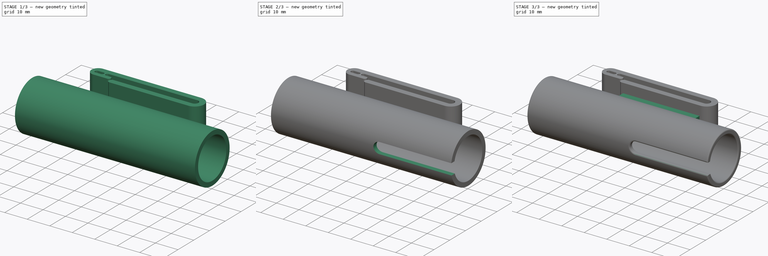
[diagram: build sequence overview — one tinted view per stage of 3, left to right]
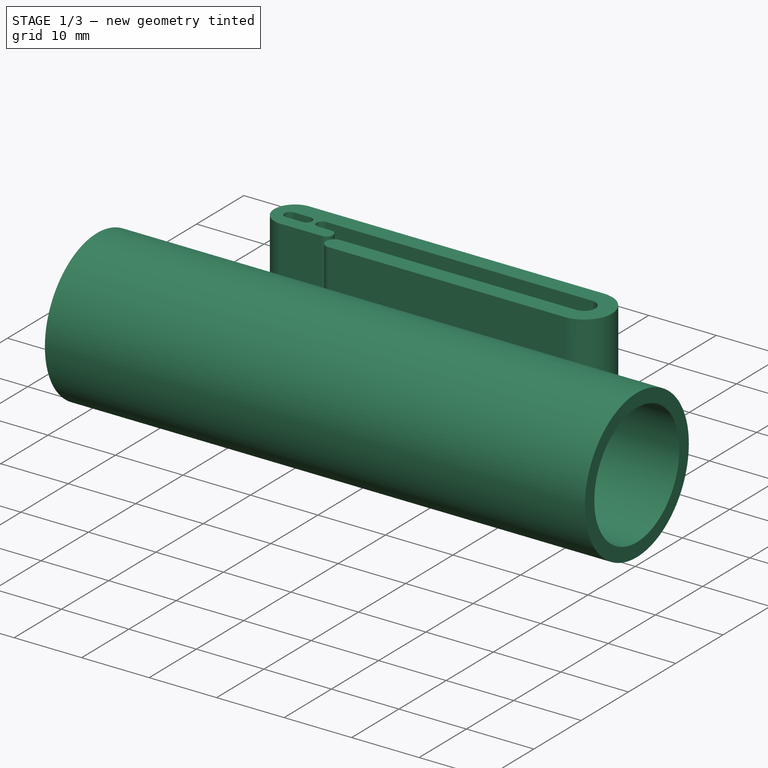
[diagram: stage 1 of 3 — iso view after this stage's code; geometry added in this stage tinted green]
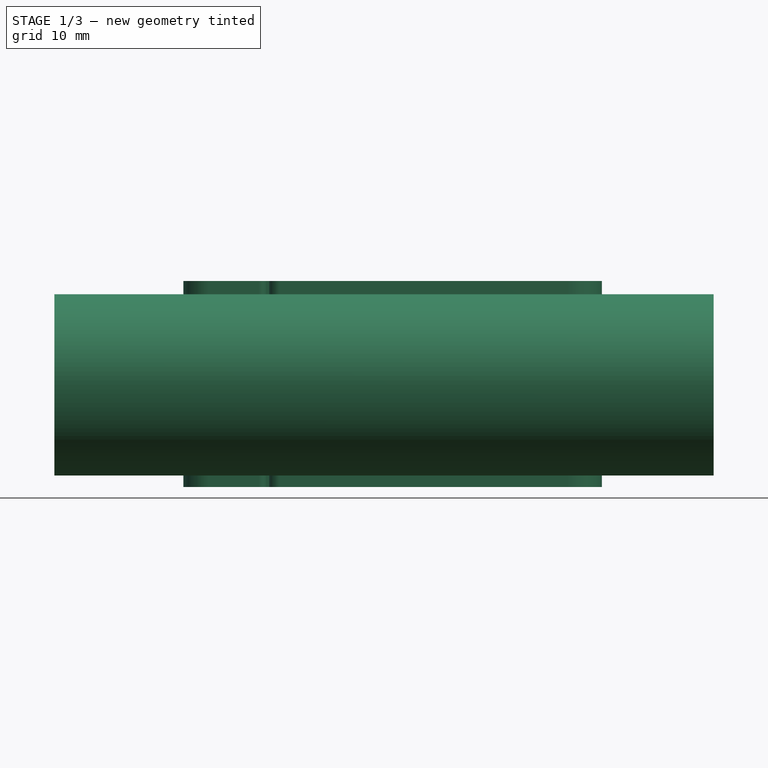
[diagram: stage 1 of 3 — front view after this stage's code; geometry added in this stage tinted green]
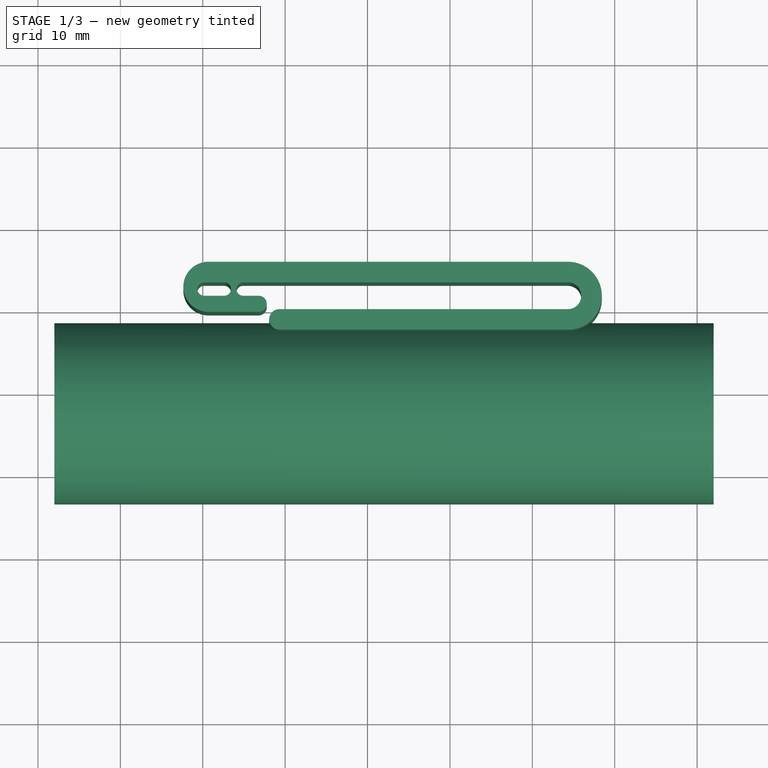
[diagram: stage 1 of 3 — top view after this stage's code; geometry added in this stage tinted green]
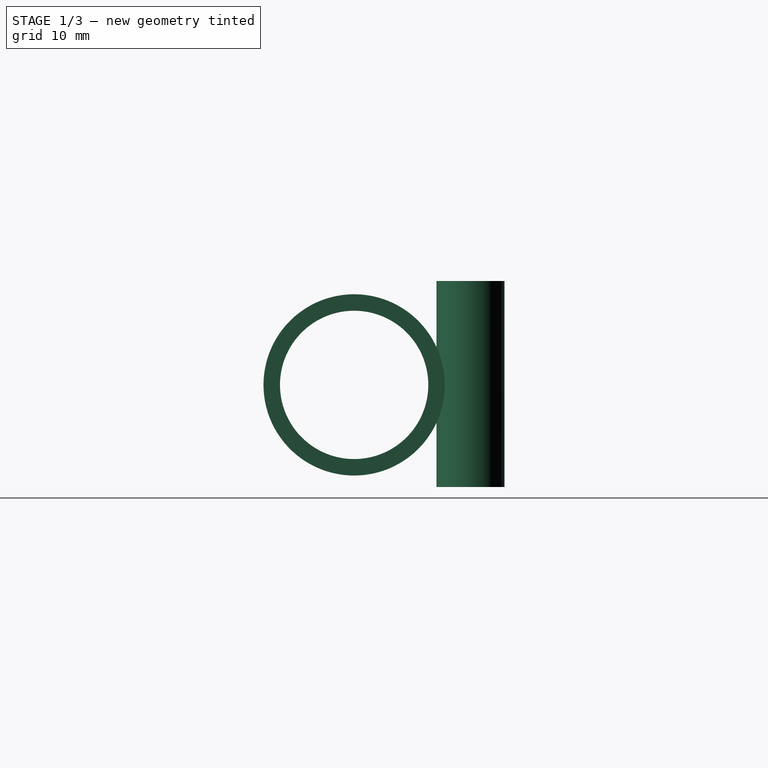
[diagram: stage 1 of 3 — right view after this stage's code; geometry added in this stage tinted green]
FCSTD DOCUMENT  (FreeCAD 0.20R29603 (Git))
Label: Flashlight_Belt_Holder
License: All rights reserved
LicenseURL: http://en.wikipedia.org/wiki/All_rights_reserved
objects: Sketcher::SketchObject×5, PartDesign::Pad×4, PartDesign::Pocket×1, PartDesign::Fillet×1, PartDesign::Body×1, App::Part×1
note: 18 computed .brp shape members not serialized (recipe doc carries the construction recipe); baked Part::Feature solids carry a one-line shape summary decoded from their .brp

FEATURE [Sketcher::SketchObject] Sketch
  FullyConstrained = false
  MapMode = 5
  Support = -> [XY_Plane001]
  sketch-geometry (17):
    g0: LineSegment StartX=-20.6869 StartY=-2.5 StartZ=0 EndX=14.3131 EndY=-2.5 EndZ=0
    g1: ArcOfCircle CenterX=14.3131 CenterY=1.625 CenterZ=0 NormalX=0 NormalY=0 NormalZ=1 AngleXU=0 Radius=4.125 StartAngle=4.71239 EndAngle=7.85398
    g2: LineSegment StartX=14.3131 StartY=5.75 StartZ=0 EndX=-29.3105 EndY=5.75 EndZ=0
    g3: LineSegment StartX=-23.0439 StartY=3.25 StartZ=0 EndX=14.3131 EndY=3.25 EndZ=0
    g4: ArcOfCircle CenterX=14.3131 CenterY=1.625 CenterZ=0 NormalX=0 NormalY=0 NormalZ=1 AngleXU=0 Radius=1.625 StartAngle=4.71239 EndAngle=7.85398
    g5: LineSegment StartX=14.3131 StartY=0 StartZ=0 EndX=-20.6869 EndY=0 EndZ=0
    g6: ArcOfCircle CenterX=-20.6869 CenterY=-1.25 CenterZ=0 NormalX=0 NormalY=0 NormalZ=1 AngleXU=0 Radius=1.25 StartAngle=1.5708 EndAngle=4.71239
    g7: ArcOfCircle CenterX=-29.3105 CenterY=2.70596 CenterZ=0 NormalX=0 NormalY=0 NormalZ=1 AngleXU=0 Radius=3.04404 StartAngle=1.5708 EndAngle=4.71239
    g8: LineSegment StartX=-29.3105 StartY=-0.338083 StartZ=0 EndX=-23.2089 EndY=-0.338083 EndZ=0
    g9: ArcOfCircle CenterX=-23.2089 CenterY=0.642392 CenterZ=0 NormalX=0 NormalY=0 NormalZ=1 AngleXU=0 Radius=0.980474 StartAngle=4.71239 EndAngle=7.85398
    g10: LineSegment StartX=-23.2089 StartY=1.62287 StartZ=0 EndX=-25.0966 EndY=1.62287 EndZ=0
    g11: ArcOfCircle CenterX=-25.0966 CenterY=2.43643 CenterZ=0 NormalX=0 NormalY=0 NormalZ=1 AngleXU=0 Radius=0.813567 StartAngle=1.5708 EndAngle=4.71239
    g12: LineSegment StartX=-25.0966 StartY=3.25 StartZ=0 EndX=-23.0439 EndY=3.25 EndZ=0
    g13: ArcOfCircle CenterX=-29.8299 CenterY=2.43643 CenterZ=0 NormalX=0 NormalY=0 NormalZ=1 AngleXU=0 Radius=0.813567 StartAngle=1.5708 EndAngle=4.71239
    g14: ArcOfCircle CenterX=-27.3837 CenterY=2.43643 CenterZ=0 NormalX=0 NormalY=0 NormalZ=1 AngleXU=0 Radius=0.813567 StartAngle=4.71239 EndAngle=7.85398
    g15: LineSegment StartX=-29.8299 StartY=1.62287 StartZ=0 EndX=-27.3837 EndY=1.62287 EndZ=0
    g16: LineSegment StartX=-27.3837 StartY=3.25 StartZ=0 EndX=-29.8299 EndY=3.25 EndZ=0
  constraints (37):
    c: Horizontal(g0)
    c: Tangent(g0,g1) = -1.5708
    c: Coincident(g1,g2)
    c: Horizontal(g2)
    c: Horizontal(g3)
    c: Tangent(g3,g4) = 1.5708
    c: PointOnObject(g4,g-1)
    c: Coincident(g4,g5)
    c: PointOnObject(g5,g-1)
    c: Tangent(g5,g6) = -1.5708
    c: Coincident(g6,g0)
    c: Vertical(g4,g3)
    c: DistanceY(g4,g3) = 3.25
    c: Vertical(g1,g3)
    c: Vertical(g1,g0)
    c: DistanceY(g0,g4) = 2.5
    c: DistanceY(g3,g1) = 2.5
    c: Vertical(g5,g0)
    c: DistanceX(g0,g0) = 35
    c: Tangent(g2,g7) = -1.5708
    c: Tangent(g7,g8) = -1.5708
    c: Horizontal(g8)
    c: Tangent(g8,g9) = -1.5708
    c: Tangent(g9,g10) = -1.5708
    c: Tangent(g10,g11) = 1.5708
    c: Tangent(g11,g12) = 1.5708
    c: Coincident(g12,g3)
    c: Horizontal(g12)
    c: Horizontal(g10)
    c: Tangent(g13,g15) = -1.5708
    c: Tangent(g15,g14) = -1.5708
    c: Tangent(g14,g16) = -1.5708
    c: Tangent(g16,g13) = -1.5708
    c: Equal(g13,g14)
    c: Horizontal(g15)
    c: Horizontal(g14,g11)
    c: Horizontal(g14,g10)
FEATURE [PartDesign::Pad] Pad  label="BeltClip"
  Direction = (0,0,1)
  Length = 25
  Length2 = 10
  Profile = -> Sketch
  ReferenceAxis = -> Sketch [N_Axis]
  Type = 0
FEATURE [Sketcher::SketchObject] Sketch001
  AttachmentOffset = pos=(0,0,-48) rot=(0,0,1;0rad)
  FullyConstrained = false
  MapMode = 5
  Placement = pos=(-48,1.07e-14,-1.07e-14) rot=(0.57735,0.57735,0.57735;2.0944rad)
  Support = -> [YZ_Plane001]
  sketch-geometry (2):
    g0: Circle CenterX=-12.5 CenterY=12.3915 CenterZ=0 NormalX=0 NormalY=0 NormalZ=1 AngleXU=0 Radius=9
    g1: Circle CenterX=-12.5 CenterY=12.3915 CenterZ=0 NormalX=0 NormalY=0 NormalZ=1 AngleXU=0 Radius=11
  constraints (4):
    c: Diameter(g0) = 18
    c: Coincident(g1,g0)
    c: Diameter(g1) = 22
    c: DistanceX(g0,g-1) = 12.5
FEATURE [PartDesign::Pad] Pad001  label="Tube"
  BaseFeature = -> Pad
  Direction = (1,-2e-16,3e-16)
  Length = 80
  Length2 = 10
  Profile = -> Sketch001
  ReferenceAxis = -> Sketch001 [N_Axis]
  Type = 0
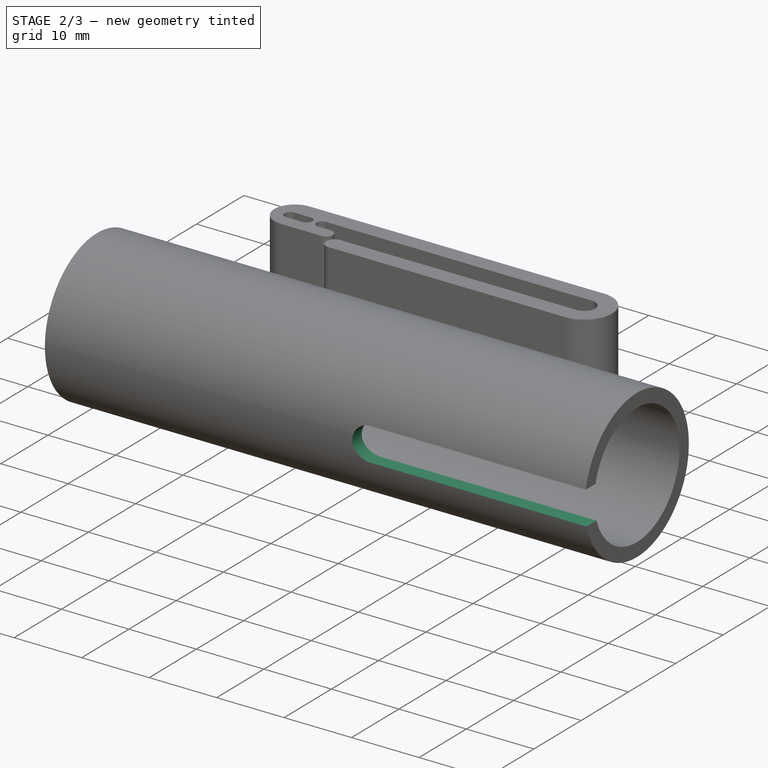
[diagram: stage 2 of 3 — iso view after this stage's code; geometry added in this stage tinted green]
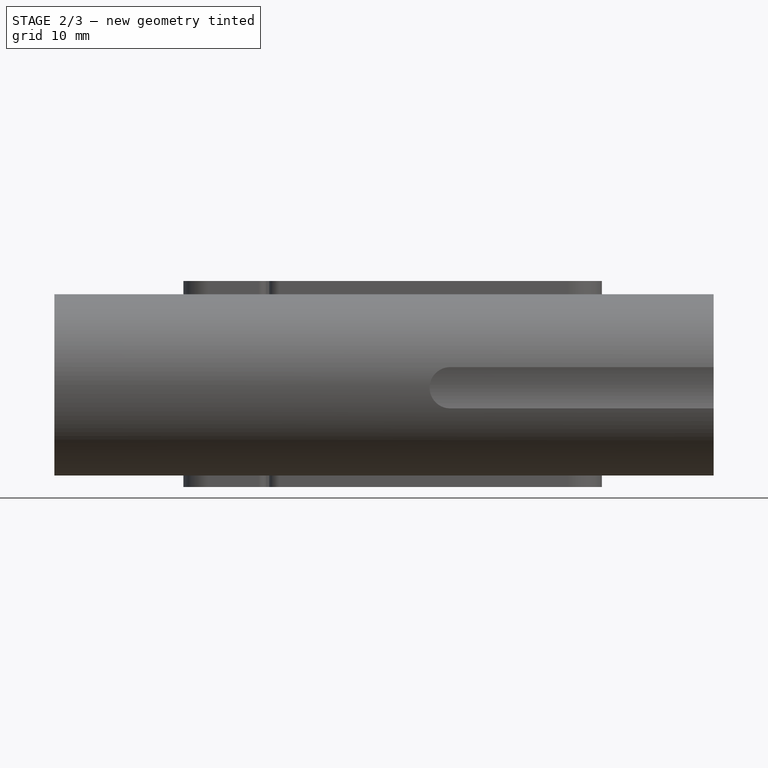
[diagram: stage 2 of 3 — front view after this stage's code; geometry added in this stage tinted green]
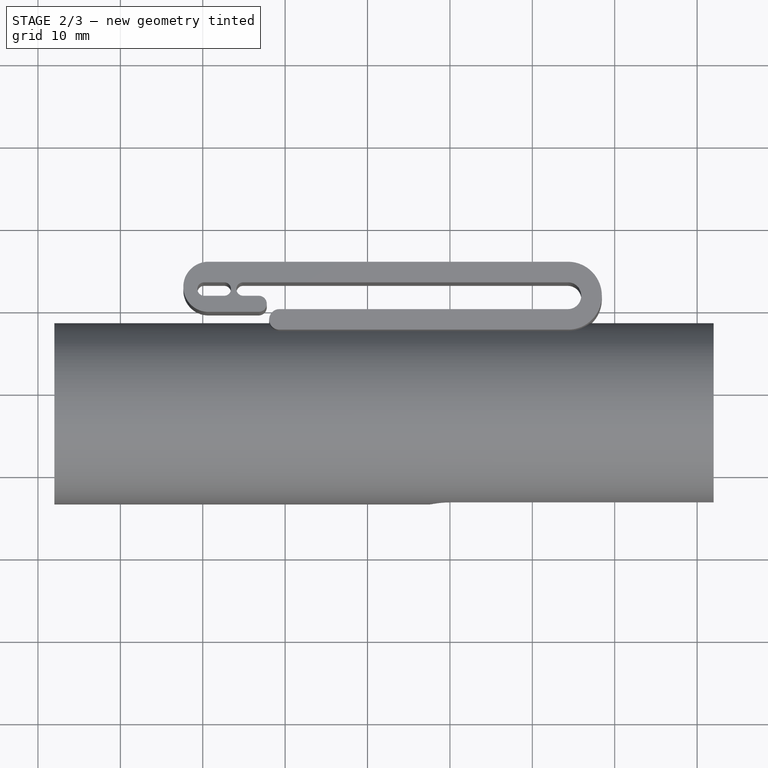
[diagram: stage 2 of 3 — top view after this stage's code; geometry added in this stage tinted green]
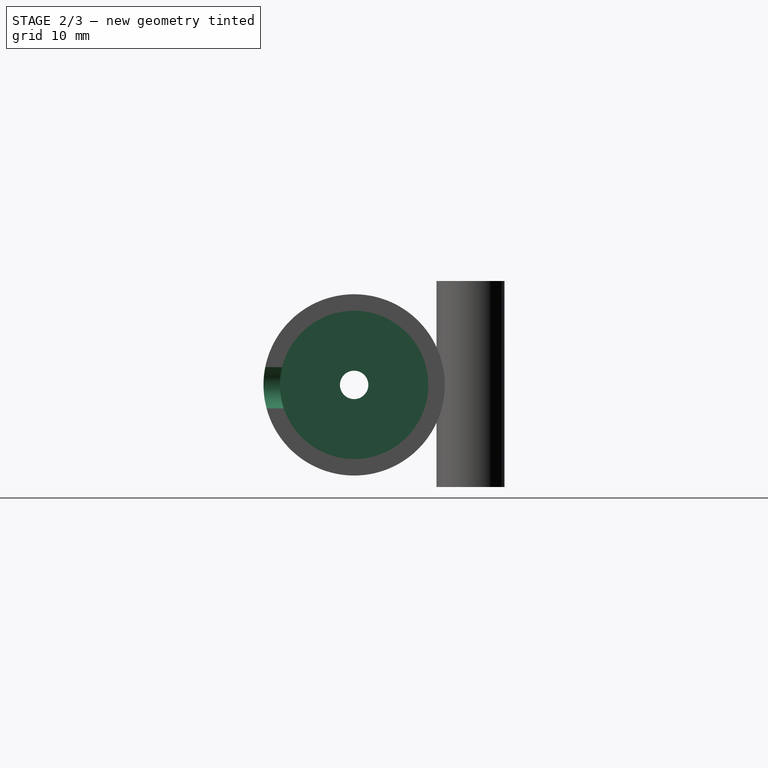
[diagram: stage 2 of 3 — right view after this stage's code; geometry added in this stage tinted green]
FEATURE [Sketcher::SketchObject] Sketch002
  AttachmentOffset = pos=(0,0,-20) rot=(0,0,1;0rad)
  FullyConstrained = false
  MapMode = 5
  Placement = pos=(-20,4.4e-15,-4.4e-15) rot=(0.57735,0.57735,0.57735;2.0944rad)
  Support = -> [YZ_Plane001]
  sketch-geometry (10):
    g0: LineSegment StartX=-6.18094 StartY=20.8176 StartZ=0 EndX=-1.15394 EndY=20.8176 EndZ=0
    g1: LineSegment StartX=-1.15394 StartY=20.8176 StartZ=0 EndX=-1.15394 EndY=15.6318 EndZ=0
    g2: LineSegment StartX=-1.15394 StartY=15.6318 StartZ=0 EndX=-3.60294 EndY=15.6318 EndZ=0
    g3: LineSegment StartX=-6.18094 StartY=19.9606 StartZ=0 EndX=-6.18094 EndY=20.8176 EndZ=0
    g4: LineSegment StartX=-6.18094 StartY=19.9606 StartZ=0 EndX=-3.60294 EndY=15.6318 EndZ=0
    g5: LineSegment StartX=-3.60294 StartY=9.15481 StartZ=0 EndX=-1.15394 EndY=9.15481 EndZ=0
    g6: LineSegment StartX=-1.15394 StartY=9.15481 StartZ=0 EndX=-1.15394 EndY=3.969 EndZ=0
    g7: LineSegment StartX=-1.15394 StartY=3.969 StartZ=0 EndX=-6.18094 EndY=3.969 EndZ=0
    g8: LineSegment StartX=-6.18094 StartY=3.969 StartZ=0 EndX=-6.18094 EndY=4.82598 EndZ=0
    g9: LineSegment StartX=-6.18094 StartY=4.82598 StartZ=0 EndX=-3.60294 EndY=9.15481 EndZ=0
  constraints (28):
    c: Coincident(g0,g1)
    c: Coincident(g1,g2)
    c: Coincident(g3,g0)
    c: Horizontal(g0)
    c: Horizontal(g2)
    c: Vertical(g1)
    c: Vertical(g3)
    c: Coincident(g3,g4)
    c: Coincident(g2,g4)
    c: Coincident(g5,g6)
    c: Vertical(g6)
    c: Coincident(g6,g7)
    c: Horizontal(g7)
    c: Coincident(g7,g8)
    c: Coincident(g9,g8)
    c: Coincident(g9,g5)
    c: Equal(g6,g1)
    c: Horizontal(g5)
    c: Equal(g3,g8)
    c: Vertical(g8)
    c: Equal(g9,g4)
    c: Equal(g5,g2)
    c: Vertical(g1,g5)
    c: DistanceX(g0,g0) = 5.027
    c: Vertical(g3,g8)
    c: DistanceY(g5,g2) = 6.477
    c: DistanceY(g-1,g6) = 3.969
    c: DistanceX(g2,g2) = 2.449
FEATURE [Sketcher::SketchObject] Sketch003
  AttachmentOffset = pos=(0,0,-48) rot=(0,0,1;0rad)
  FullyConstrained = false
  MapMode = 5
  Placement = pos=(-48,1.07e-14,-1.07e-14) rot=(0.57735,0.57735,0.57735;2.0944rad)
  Support = -> [YZ_Plane001]
  sketch-geometry (2):
    g0: Circle CenterX=-12.5 CenterY=12.3915 CenterZ=0 NormalX=0 NormalY=0 NormalZ=1 AngleXU=0 Radius=11
    g1: Circle CenterX=-12.5 CenterY=12.3915 CenterZ=0 NormalX=0 NormalY=0 NormalZ=1 AngleXU=0 Radius=1.72406
  constraints (1):
    c: Coincident(g1,g0)
FEATURE [PartDesign::Pad] Pad003  label="Bottom"
  BaseFeature = -> Pad001
  Direction = (1,-2e-16,3e-16)
  Length = 2
  Length2 = 10
  Profile = -> Sketch003
  ReferenceAxis = -> Sketch003 [N_Axis]
  Type = 0
FEATURE [Sketcher::SketchObject] Sketch004
  AttachmentOffset = pos=(0,0,20) rot=(0,0,1;0rad)
  FullyConstrained = false
  MapMode = 5
  Placement = pos=(0,-20,-4.4e-15) rot=(1,0,0;1.5708rad)
  Support = -> [XZ_Plane001]
  sketch-geometry (5):
    g0: LineSegment StartX=39.089 StartY=12.0453 StartZ=0 EndX=-39.4489 EndY=12.0453 EndZ=0
    g1: ArcOfCircle CenterX=39.089 CenterY=12.0453 CenterZ=0 NormalX=0 NormalY=0 NormalZ=1 AngleXU=0 Radius=2.5 StartAngle=4.71239 EndAngle=7.85398
    g2: ArcOfCircle CenterX=0.0331527 CenterY=12.0453 CenterZ=0 NormalX=0 NormalY=0 NormalZ=1 AngleXU=0 Radius=2.5 StartAngle=1.5708 EndAngle=4.71239
    g3: LineSegment StartX=39.089 StartY=14.5453 StartZ=0 EndX=0.0331527 EndY=14.5453 EndZ=0
    g4: LineSegment StartX=0.0331527 StartY=9.54527 StartZ=0 EndX=39.089 EndY=9.54527 EndZ=0
  constraints (9):
    c: Horizontal(g0)
    c: Tangent(g1,g3) = -1.5708
    c: Tangent(g3,g2) = -1.5708
    c: Tangent(g2,g4) = -1.5708
    c: Tangent(g4,g1) = -1.5708
    c: Equal(g1,g2)
    c: Coincident(g1,g0)
    c: PointOnObject(g2,g0)
    c: DistanceY(g1,g1) = 5
FEATURE [PartDesign::Pocket] Pocket
  BaseFeature = -> Pad003
  Direction = (0,1,2e-16)
  Length = 5
  Length2 = 5
  Profile = -> Sketch004
  ReferenceAxis = -> Sketch004 [N_Axis]
  Reversed = true
  Type = 0
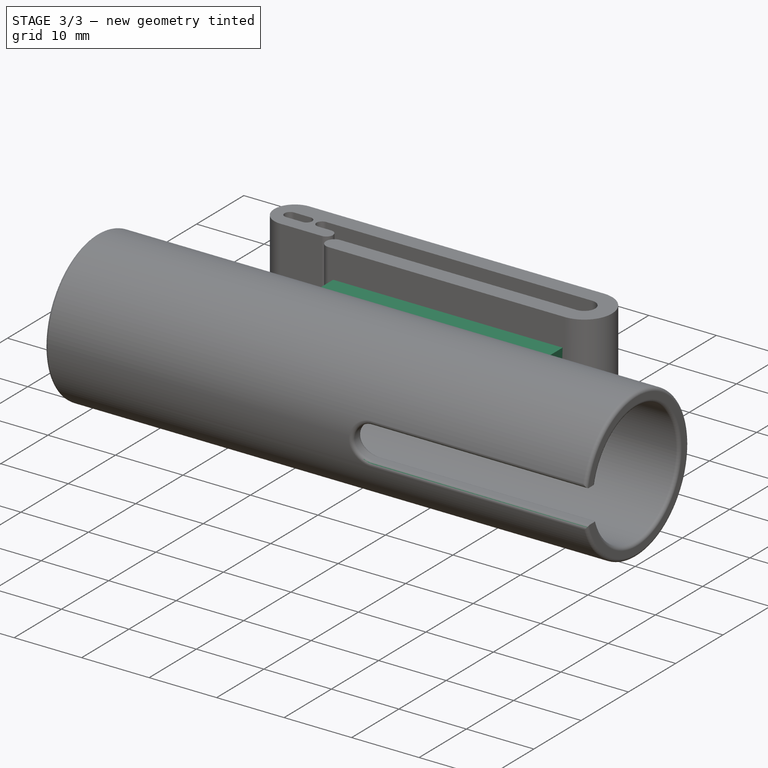
[diagram: stage 3 of 3 — iso view after this stage's code; geometry added in this stage tinted green]
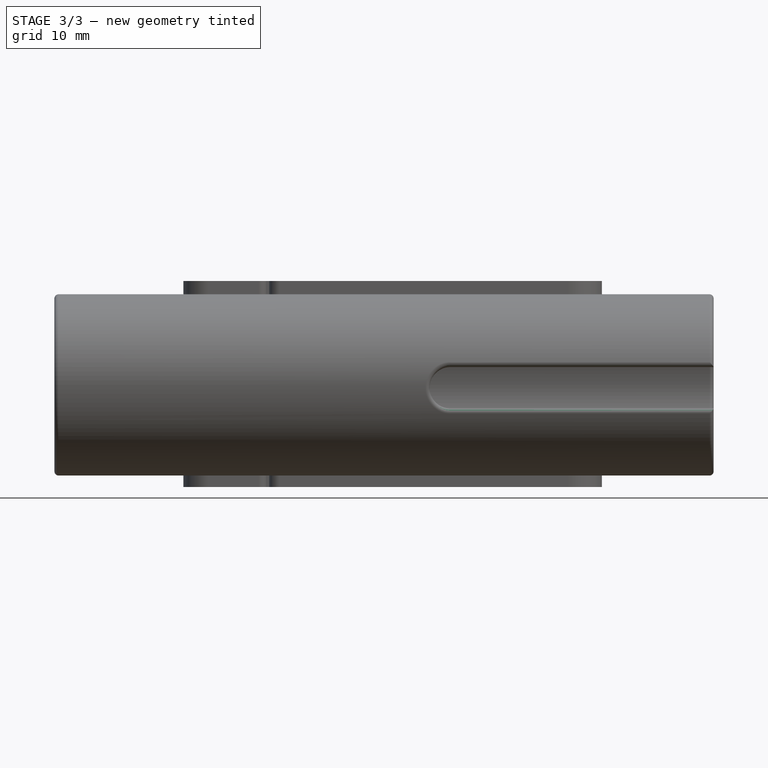
[diagram: stage 3 of 3 — front view after this stage's code; geometry added in this stage tinted green]
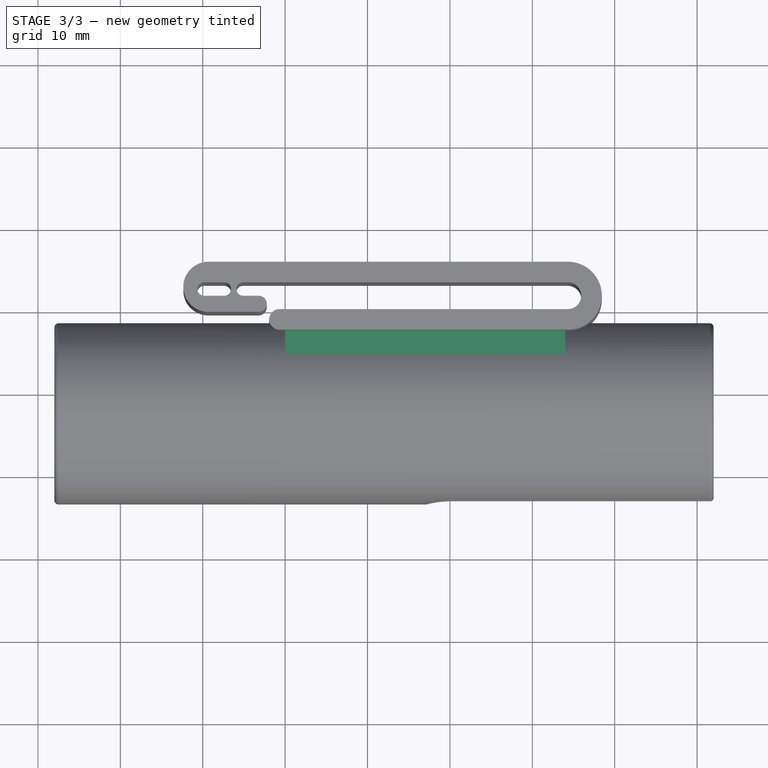
[diagram: stage 3 of 3 — top view after this stage's code; geometry added in this stage tinted green]
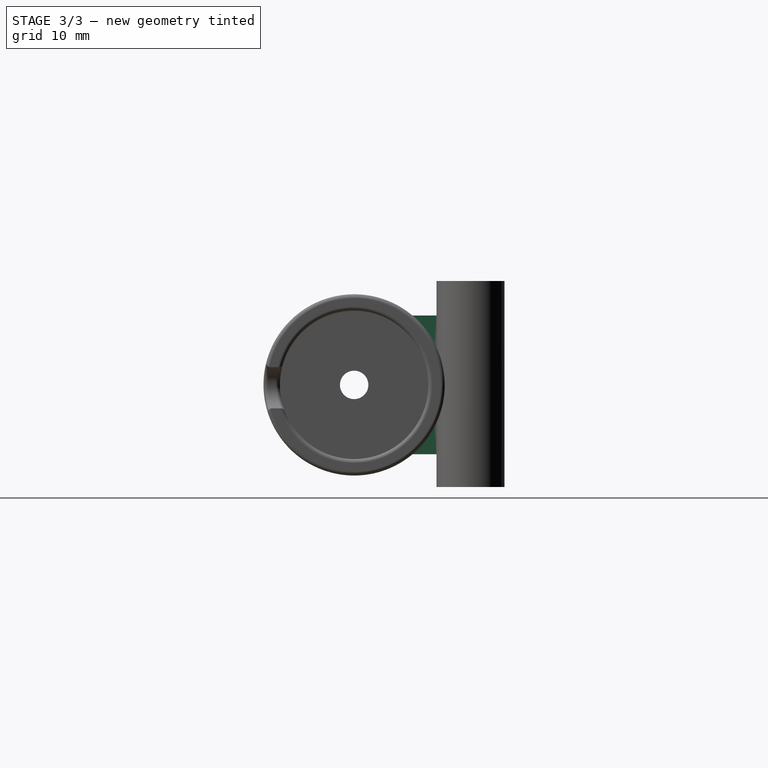
[diagram: stage 3 of 3 — right view after this stage's code; geometry added in this stage tinted green]
FEATURE [PartDesign::Pad] Pad004
  BaseFeature = -> Pocket
  Direction = (1,-2e-16,3e-16)
  Length = 34
  Length2 = 10
  Profile = -> Sketch002
  ReferenceAxis = -> Sketch002 [N_Axis]
  Type = 0
FEATURE [PartDesign::Fillet] Fillet
  Base = -> Pad004 [Edge60,Edge88,Edge59,Edge58,Edge57,Edge94,Edge92,Edge90,Edge85]
  BaseFeature = -> Pad004
  Radius = 0.5
  SupportTransform = false
  UseAllEdges = false
FEATURE [PartDesign::Body] Body
  Group = -> [Sketch,Pad,Sketch001,Pad001,Sketch002,Sketch003,Pad003,Sketch004,Pocket,Pad004,Fillet]
  Origin = -> Origin001
  Tip = -> Fillet
FEATURE [App::Part] Part
  Group = -> [Body]
  Origin = -> Origin
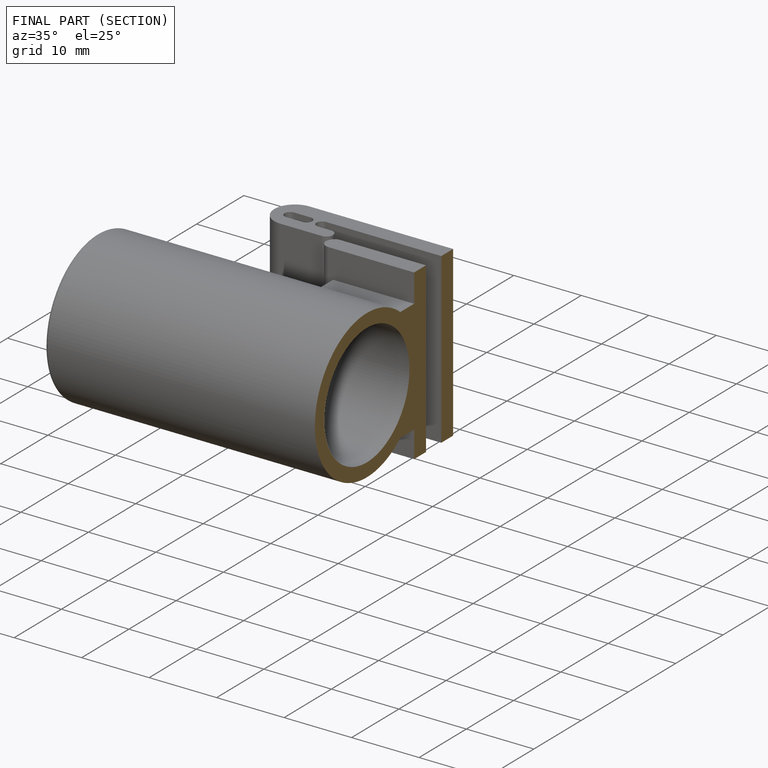
[diagram: finished part — half-section view (interior)]
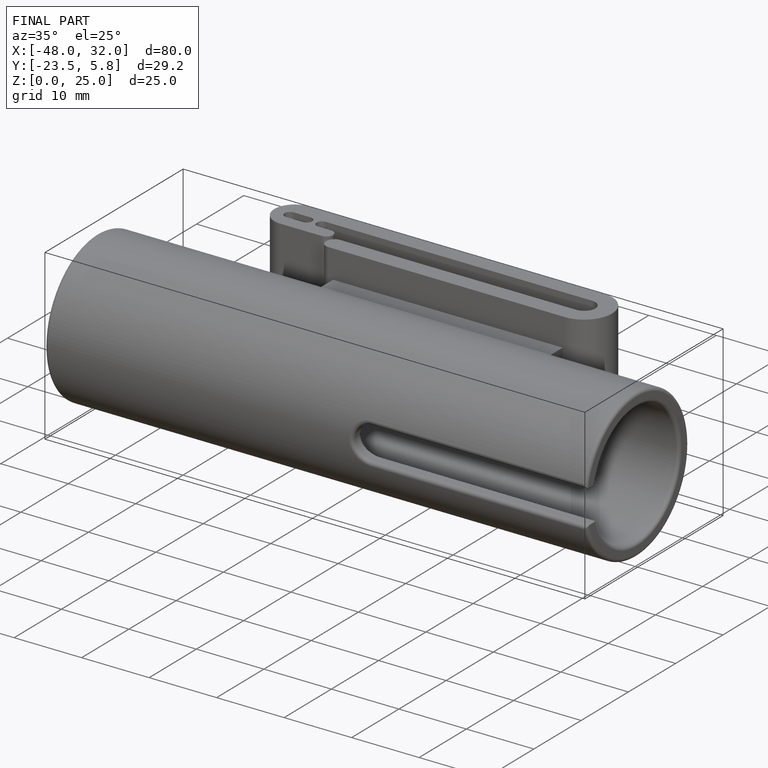
[diagram: finished part — iso view with bounding-box wireframe]
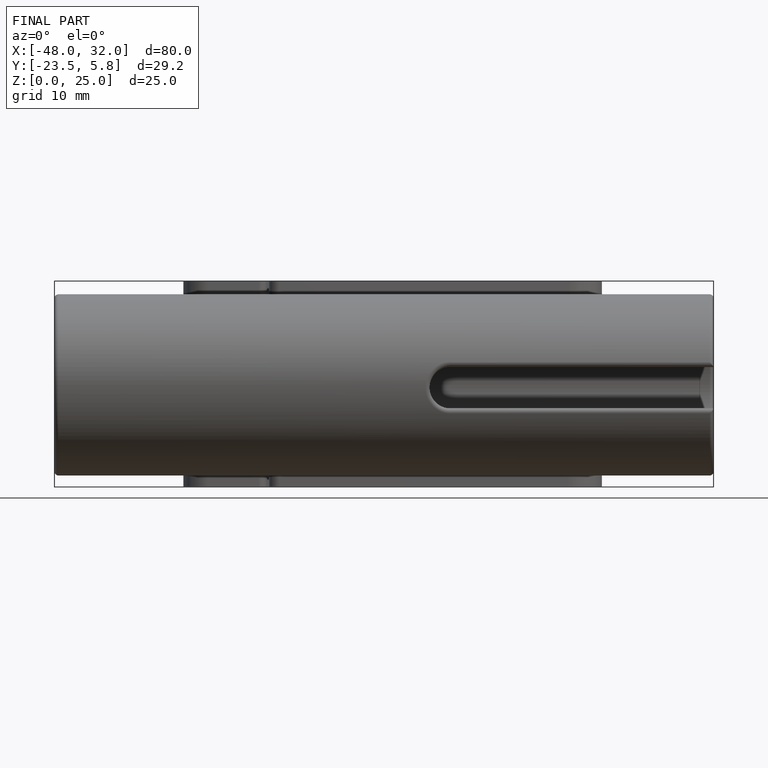
[diagram: finished part — front view with bounding-box wireframe]
